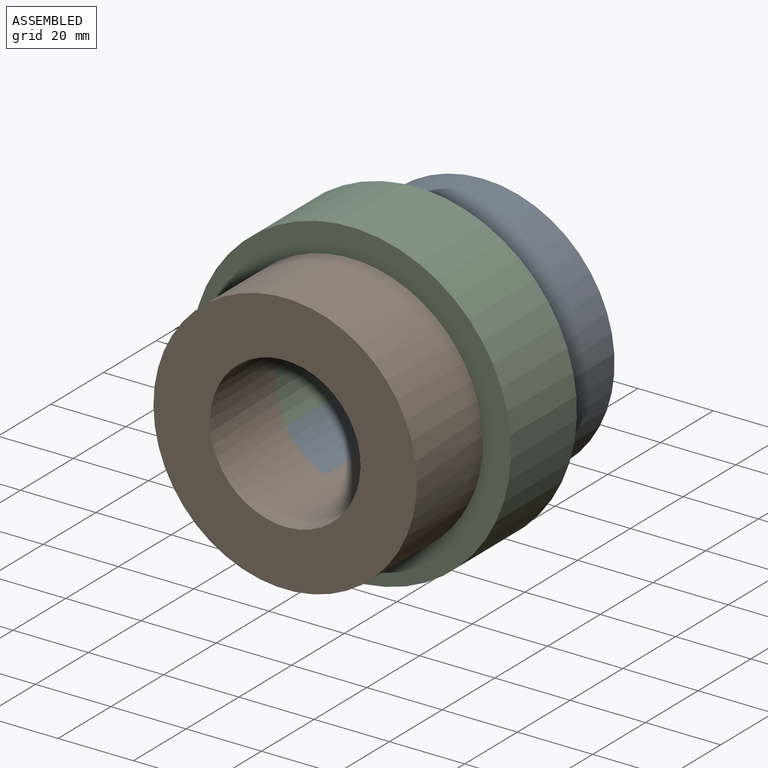
[diagram: assembled view]
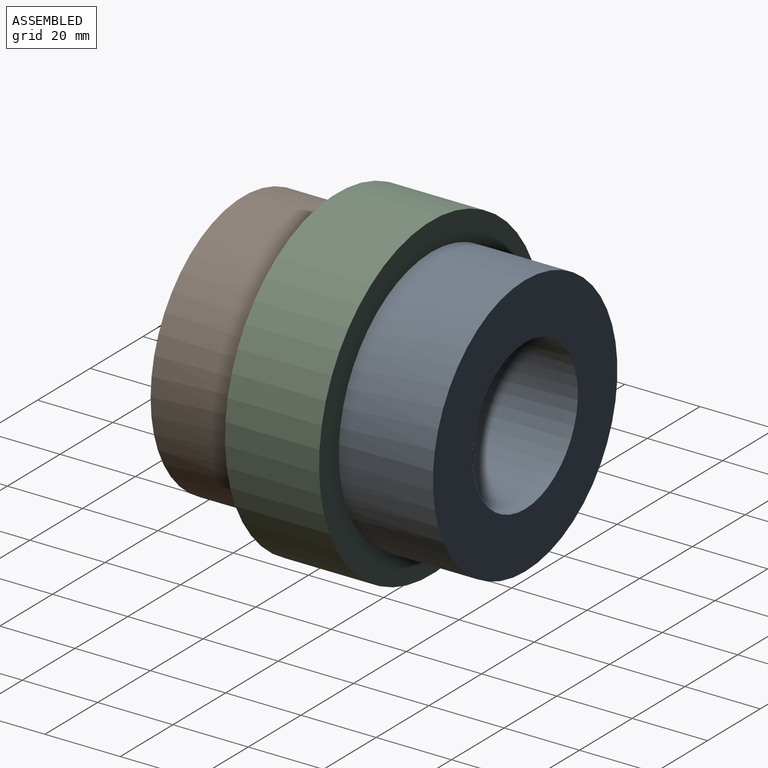
[diagram: assembled view, second angle]
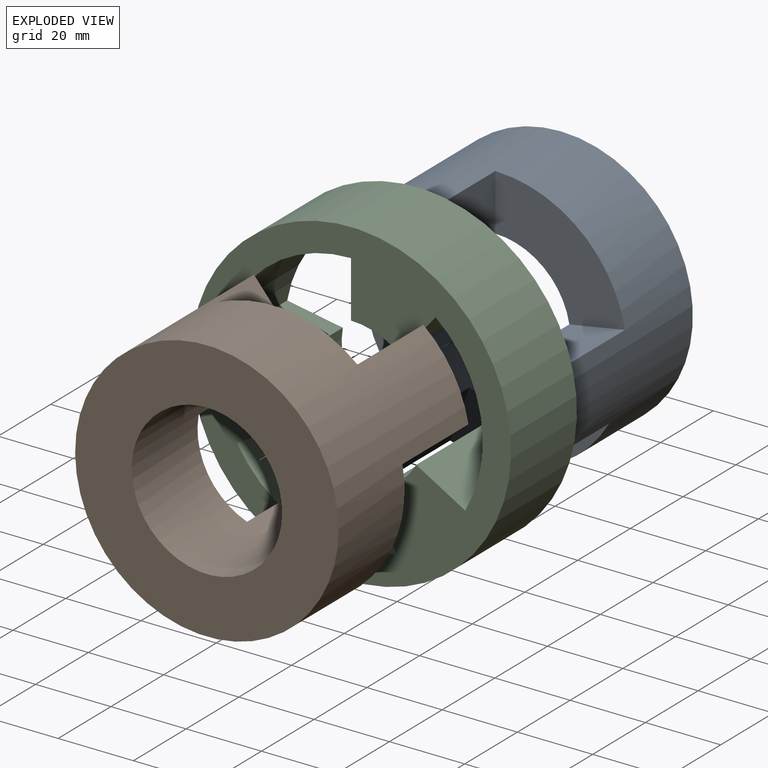
[diagram: exploded view]
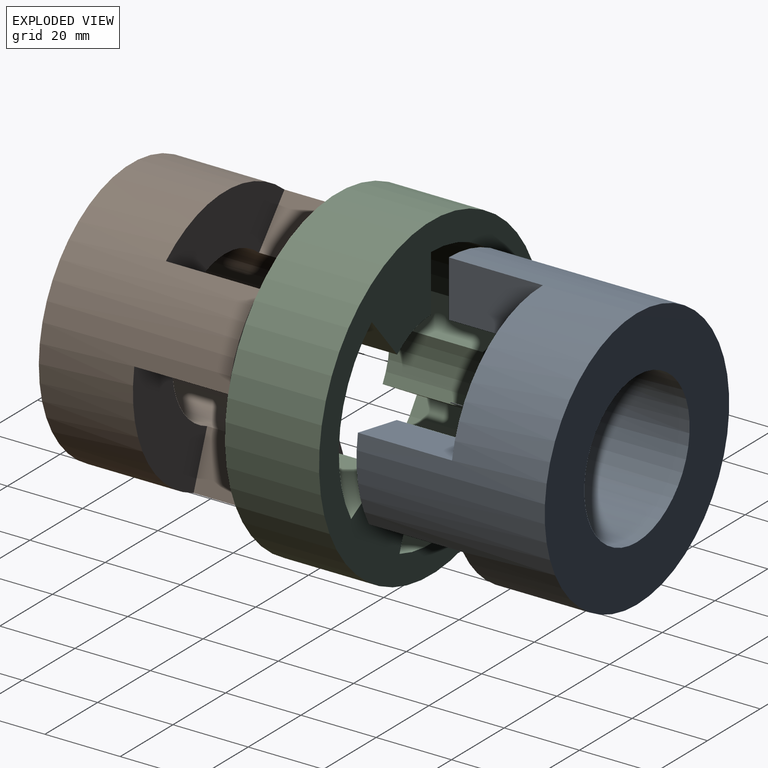
[diagram: exploded view, second angle]
ASSEMBLY  parts=3 mates=2
PART A: 15 faces, bbox 70x50x70 mm
  f0: plane 44.31x22.14mm, normal (0,-1,0), area 576mm2, adj f3,f4,f7,f13
  f1: plane 42.28x25mm, normal (0,-1,0), area 576mm2, adj f3,f4,f10,f12
  f2: plane 34.47x31.53mm, normal (0,-1,0), area 576mm2, adj f3,f4,f6,f9
  f3: cylinder r=35mm len=70mm, axis (0,1,0), area 7330.4mm2, adj f0,f1,f2,f5,f6,f7,f8,f9
  f4: cylinder r=20mm len=50mm, axis (0,1,0), area 4188.8mm2, adj f0,f1,f2,f5,f6,f7,f8,f9
  f5: plane 70x70mm, normal (0,1,0), area 2591.8mm2, adj f3,f4
  f6: plane 25x15mm, normal (1,0,0), area 375mm2, adj f2,f3,f4,f8
  f7: plane 25x11.49mm, normal (-0.77,0,-0.64), area 375mm2, adj f0,f3,f4,f8
  f8: plane 22.5x19.68mm, normal (0,-1,0), area 288mm2, adj f3,f4,f6,f7
  f9: plane 25x14.77mm, normal (-0.17,0,0.98), area 375mm2, adj f2,f3,f4,f11
  f10: plane 25x12.99mm, normal (-0.5,0,-0.87), area 375mm2, adj f1,f3,f4,f11
  f11: plane 23.58x17.68mm, normal (0,-1,0), area 288mm2, adj f3,f4,f9,f10
  f12: plane 25x14.1mm, normal (0.94,0,-0.34), area 375mm2, adj f1,f3,f4,f14
  f13: plane 25x12.99mm, normal (-0.5,0,0.87), area 375mm2, adj f0,f3,f4,f14
  f14: plane 23.47x22.89mm, normal (0,-1,0), area 288mm2, adj f3,f4,f12,f13
PART B: same geometry as A
PART C: 15 faces, bbox 85x25x85 mm
  f0: plane 25x14.77mm, normal (-0.17,0,0.98), area 375mm2, adj f2,f9,f10,f12
  f1: plane 25x12.99mm, normal (-0.5,0,-0.87), area 375mm2, adj f2,f9,f10,f14
  f2: cylinder r=20mm len=25mm, axis (0,1,0), area 349.1mm2, adj f0,f1,f9,f10
  f3: plane 25x15mm, normal (1,0,0), area 375mm2, adj f8,f9,f10,f12
  f4: plane 25x11.49mm, normal (-0.77,0,-0.64), area 375mm2, adj f8,f9,f10,f13
  f5: plane 25x14.1mm, normal (0.94,0,-0.34), area 375mm2, adj f7,f9,f10,f14
  f6: plane 25x12.99mm, normal (-0.5,0,0.87), area 375mm2, adj f7,f9,f10,f13
  f7: cylinder r=20mm len=25mm, axis (0,1,0), area 349.1mm2, adj f5,f6,f9,f10
  f8: cylinder r=20mm len=25mm, axis (0,1,0), area 349.1mm2, adj f3,f4,f9,f10
  f9: plane 85x85mm, normal (0,-1,0), area 2690mm2, adj f0,f1,f2,f3,f4,f5,f6,f7
  f10: plane 85x85mm, normal (0,1,0), area 2690mm2, adj f0,f1,f2,f3,f4,f5,f6,f7
  f11: cylinder r=42.5mm len=85mm, axis (0,1,0), area 6675.9mm2, adj f9,f10
  f12: cylinder r=35mm len=34.47mm, axis (0,-1,0), area 1221.7mm2, adj f0,f3,f9,f10
  f13: cylinder r=35mm len=44.31mm, axis (0,-1,0), area 1221.7mm2, adj f4,f6,f9,f10
  f14: cylinder r=35mm len=42.28mm, axis (0,-1,0), area 1221.7mm2, adj f1,f5,f9,f10
PLACE A t=(68.26,29.35,33.83)mm
PLACE B rot(axis=(0.98,0,0.17),180deg) t=(68.26,-45.65,33.83)mm
PLACE C rot(axis=(0,-1,0),80deg) t=(68.26,4.35,33.83)mm
MATE revolute A.f3 <-> C.f11  axis (0,-1,0) through (68.26,-20.65,33.83)mm
MATE revolute C.f11 <-> B.f3  axis (0,-1,0) through (68.26,-20.65,33.83)mm
